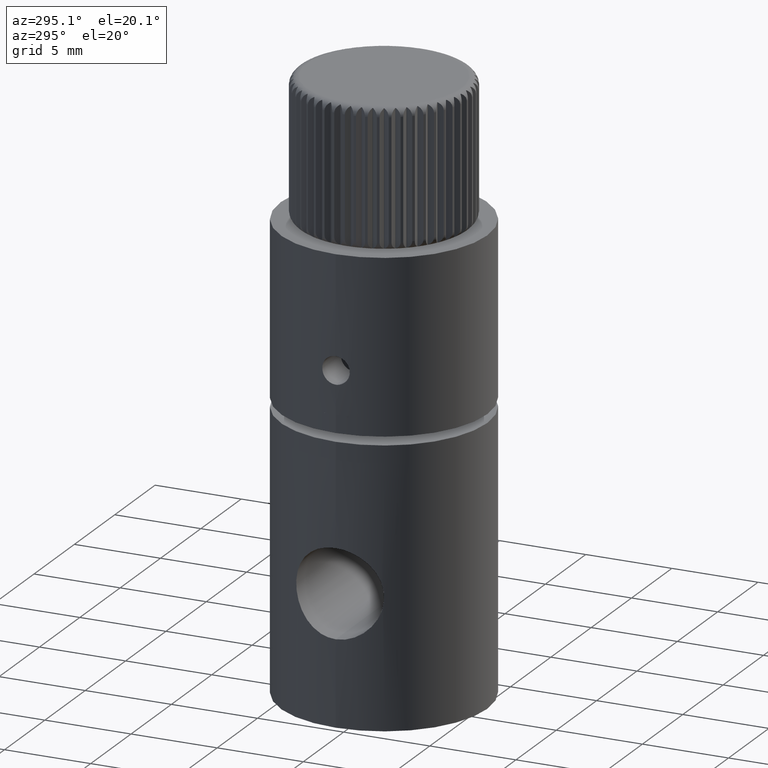
[diagram: clean part render]
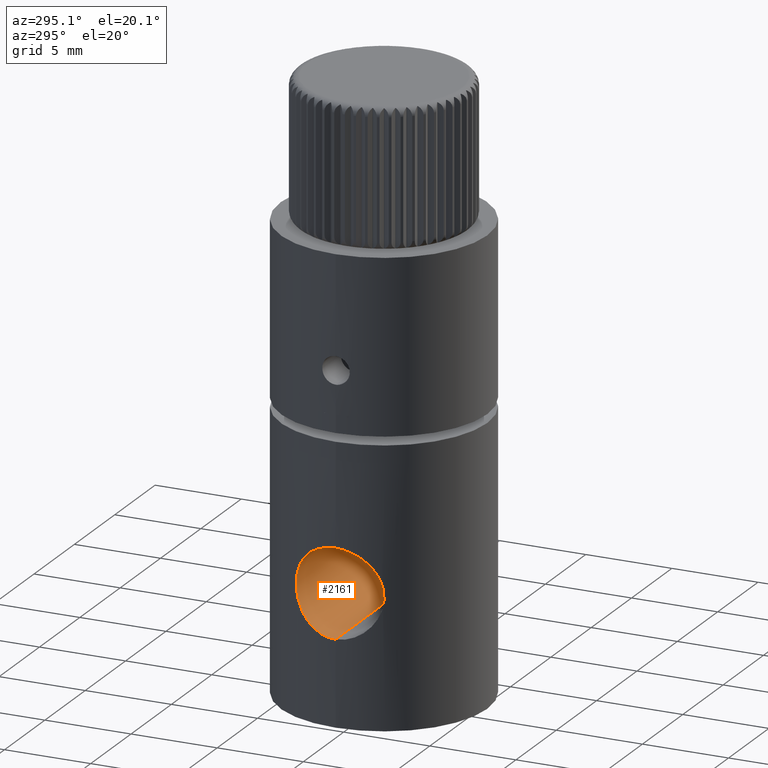
[diagram: same view with one face highlighted and labeled with its STEP entity id]
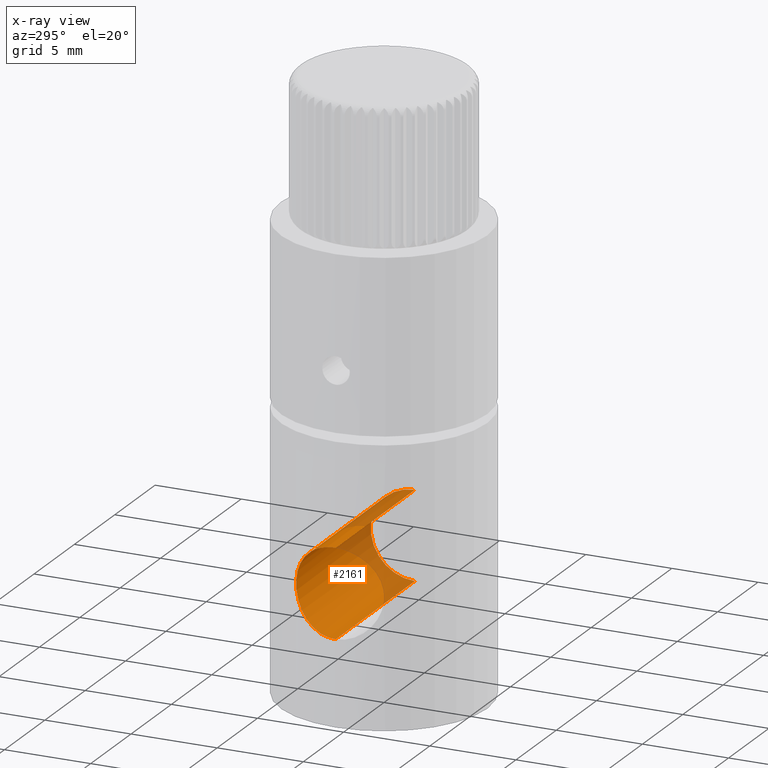
[diagram: x-ray of the same camera — body ghosted, the highlighted face saturated]
A machine part, auxiliary view. The second image highlights one B-rep face of the part: STEP entity #2161.
The next image is the same camera in x-ray: the body ghosted, the highlighted face saturated — about 27% of this face is hidden behind the body in this view.
In plain terms, the highlighted cylindrical surface (partial cylindrical patch) has radius 2.5527 mm, axis along (-1, -0, -0).
Its self-contained STEP definition (entity closure, byte-faithful):
#72 = CARTESIAN_POINT ( 'NONE',  ( -5.944244156964011000, 0.8309052482685443900, 9.919466645277117000 ) ) ;
#107 = CARTESIAN_POINT ( 'NONE',  ( -5.648262007246279900, 2.038756555196448600, 9.070963359173148900 ) ) ;
#148 = CARTESIAN_POINT ( 'NONE',  ( -5.468345754272006900, 2.469518497889168400, 6.832190531578320700 ) ) ;
#285 = FACE_OUTER_BOUND ( 'NONE', #7511, .T. ) ;
#324 = ORIENTED_EDGE ( 'NONE', *, *, #862, .T. ) ;
#565 = VECTOR ( 'NONE', #6896, 1000.000000000000000 ) ;
#580 = CARTESIAN_POINT ( 'NONE',  ( 3.810000000000004500, 1.179977326406748200E-015, 4.947300000000002000 ) ) ;
#862 = EDGE_CURVE ( 'NONE', #11086, #7405, #5929, .T. ) ;
#869 = CIRCLE ( 'NONE', #6648, 2.552699999999998000 ) ;
#974 = CARTESIAN_POINT ( 'NONE',  ( -5.999999999999996400, 8.673617379884035500E-016, 10.05269999999999800 ) ) ;
#988 = ORIENTED_EDGE ( 'NONE', *, *, #2655, .F. ) ;
#1024 = CARTESIAN_POINT ( 'NONE',  ( -5.999999999999996400, 6.355360064160834200E-021, 4.947300000000001100 ) ) ;
#1724 = CARTESIAN_POINT ( 'NONE',  ( -5.892906163677259300, 1.139341509511341700, 9.790441726810167100 ) ) ;
#2002 = VECTOR ( 'NONE', #2173, 1000.000000000000000 ) ;
#2161 = ADVANCED_FACE ( 'NONE', ( #285 ), #9475, .F. ) ;
#2173 = DIRECTION ( 'NONE',  ( -1.000000000000000000, -0.0000000000000000000, -0.0000000000000000000 ) ) ;
#2571 = CARTESIAN_POINT ( 'NONE',  ( -5.490622629775575800, 2.420337363094047200, 6.671419014724506300 ) ) ;
#2655 = EDGE_CURVE ( 'NONE', #6703, #3335, #10551, .T. ) ;
#2714 = CARTESIAN_POINT ( 'NONE',  ( -5.758991539887777100, 1.687886440676352300, 5.577895710123883100 ) ) ;
#3166 = DIRECTION ( 'NONE',  ( 0.0000000000000000000, 0.0000000000000000000, 1.000000000000000000 ) ) ;
#3335 = VERTEX_POINT ( 'NONE', #1024 ) ;
#3439 = CARTESIAN_POINT ( 'NONE',  ( -5.862517845510545600, 1.284934555259935400, 5.288023523107062500 ) ) ;
#3471 = CARTESIAN_POINT ( 'NONE',  ( -5.685461387065889700, 1.921060386687751800, 5.810925540872053000 ) ) ;
#3501 = CARTESIAN_POINT ( 'NONE',  ( -5.999999999999996400, 8.673617379884035500E-016, 7.500000000000000000 ) ) ;
#3545 = CARTESIAN_POINT ( 'NONE',  ( -5.758316529808174900, 1.690159383313438700, 9.420073636166799600 ) ) ;
#3582 = CARTESIAN_POINT ( 'NONE',  ( -5.999999999999997300, 0.1708618789649135100, 10.05270000000000200 ) ) ;
#3868 = ORIENTED_EDGE ( 'NONE', *, *, #10075, .F. ) ;
#4298 = CARTESIAN_POINT ( 'NONE',  ( -5.969844642911844800, 0.6764812792610435100, 5.016229969747153700 ) ) ;
#4358 = DIRECTION ( 'NONE',  ( 0.0000000000000000000, 0.0000000000000000000, 1.000000000000000000 ) ) ;
#4404 = CARTESIAN_POINT ( 'NONE',  ( -5.862444106027386000, 1.285275173672292000, 9.711783231497978600 ) ) ;
#4439 = CARTESIAN_POINT ( 'NONE',  ( -5.647843153973642700, 2.027698830350301400, 5.940497143328531800 ) ) ;
#4727 = CARTESIAN_POINT ( 'NONE',  ( -5.999999999999996400, 3.887585098853531700E-017, 10.05270000000000000 ) ) ;
#5162 = CARTESIAN_POINT ( 'NONE',  ( -5.999999999999996400, 6.355360064160834200E-021, 4.947300000000001100 ) ) ;
#5233 = CARTESIAN_POINT ( 'NONE',  ( -5.437958350492109200, 2.535731822964449700, 7.161539929185420500 ) ) ;
#5493 = B_SPLINE_CURVE_WITH_KNOTS ( 'NONE', 3,
 ( #10338, #3582, #9391, #8568, #72, #1724, #4404, #7752, #3545, #107, #7683, #6897, #7820, #8594, #10379, #9534, #5233, #148, #2571, #6961, #6100, #4439, #3471, #2714, #6033, #3439, #8668, #4298, #10268, #5162 ),
 .UNSPECIFIED., .F., .F.,
 ( 4, 2, 2, 2, 2, 2, 2, 2, 2, 2, 2, 2, 2, 2, 4 ),
 ( 2.343948303764521900E-019, 0.0005049007764442224700, 0.001009801552888444700, 0.001514702329332667200, 0.002019603105776889400, 0.003029404658665337800, 0.003534305435109559700, 0.004039206211553780600, 0.004544106987998002000, 0.005049007764442223400, 0.005553908540886444800, 0.006058809317330665300, 0.006563710093774887500, 0.007068610870219108900, 0.008078412423107554300 ),
 .UNSPECIFIED. ) ;
#5704 = CARTESIAN_POINT ( 'NONE',  ( -5.999999999999996400, 1.179977326406748200E-015, 4.947300000000001100 ) ) ;
#5929 = LINE ( 'NONE', #974, #565 ) ;
#6030 = ORIENTED_EDGE ( 'NONE', *, *, #9703, .T. ) ;
#6033 = CARTESIAN_POINT ( 'NONE',  ( -5.795152814598098200, 1.560889539873475700, 5.473298100375313200 ) ) ;
#6100 = CARTESIAN_POINT ( 'NONE',  ( -5.578269271765546700, 2.211923771328298600, 6.215085630711819000 ) ) ;
#6648 = AXIS2_PLACEMENT_3D ( 'NONE', #8220, #9872, #3166 ) ;
#6703 = VERTEX_POINT ( 'NONE', #580 ) ;
#6896 = DIRECTION ( 'NONE',  ( -1.000000000000000000, -0.0000000000000000000, -0.0000000000000000000 ) ) ;
#6897 = CARTESIAN_POINT ( 'NONE',  ( -5.491013924241630500, 2.419421845790914900, 8.330789040088090400 ) ) ;
#6961 = CARTESIAN_POINT ( 'NONE',  ( -5.545974455389840700, 2.290663038064754400, 6.360946776312403900 ) ) ;
#7405 = VERTEX_POINT ( 'NONE', #4727 ) ;
#7511 = EDGE_LOOP ( 'NONE', ( #988, #3868, #324, #6030 ) ) ;
#7683 = CARTESIAN_POINT ( 'NONE',  ( -5.572914848926818500, 2.227546637678816200, 8.790137238842843800 ) ) ;
#7752 = CARTESIAN_POINT ( 'NONE',  ( -5.795043143253274700, 1.561300142889503900, 9.526390682718211900 ) ) ;
#7820 = CARTESIAN_POINT ( 'NONE',  ( -5.468351807529750800, 2.469506451975976600, 8.167990502786629700 ) ) ;
#8220 = CARTESIAN_POINT ( 'NONE',  ( 3.810000000000004500, 8.673617379884035500E-016, 7.500000000000000000 ) ) ;
#8568 = CARTESIAN_POINT ( 'NONE',  ( -5.965024896758325900, 0.6676500221190020400, 9.969555029821426800 ) ) ;
#8594 = CARTESIAN_POINT ( 'NONE',  ( -5.437886826935343100, 2.535886524414675300, 7.837569198026374200 ) ) ;
#8668 = CARTESIAN_POINT ( 'NONE',  ( -5.893420248366296300, 1.136558740923486500, 5.208247980905516900 ) ) ;
#9391 = CARTESIAN_POINT ( 'NONE',  ( -5.992720918777562700, 0.3384886418005321200, 10.03572160079213700 ) ) ;
#9462 = DIRECTION ( 'NONE',  ( -1.000000000000000000, -0.0000000000000000000, -0.0000000000000000000 ) ) ;
#9475 = CYLINDRICAL_SURFACE ( 'NONE', #9629, 2.552699999999998000 ) ;
#9534 = CARTESIAN_POINT ( 'NONE',  ( -5.429838452978580100, 2.552813034735556200, 7.332875743293938000 ) ) ;
#9629 = AXIS2_PLACEMENT_3D ( 'NONE', #3501, #9462, #4358 ) ;
#9703 = EDGE_CURVE ( 'NONE', #7405, #3335, #5493, .T. ) ;
#9872 = DIRECTION ( 'NONE',  ( -1.000000000000000000, -0.0000000000000000000, -0.0000000000000000000 ) ) ;
#10075 = EDGE_CURVE ( 'NONE', #11086, #6703, #869, .T. ) ;
#10268 = CARTESIAN_POINT ( 'NONE',  ( -5.999999999999996400, 0.3366328385950149700, 4.947300000000000300 ) ) ;
#10338 = CARTESIAN_POINT ( 'NONE',  ( -5.999999999999996400, 3.887585098853531700E-017, 10.05270000000000000 ) ) ;
#10379 = CARTESIAN_POINT ( 'NONE',  ( -5.429945276078896700, 2.552585809438944900, 7.670559646300763900 ) ) ;
#10551 = LINE ( 'NONE', #5704, #2002 ) ;
#11049 = CARTESIAN_POINT ( 'NONE',  ( 3.810000000000004500, 8.673617379884035500E-016, 10.05269999999999800 ) ) ;
#11086 = VERTEX_POINT ( 'NONE', #11049 ) ;